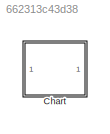
MODEL slx_662313c43d38
KIND model
CONFIG AbsTol = auto
CONFIG EnableMultiTasking = off
CONFIG FixedStep = auto
CONFIG MaxStep = auto
CONFIG MinStep = auto
CONFIG RelTol = 1e-3
CONFIG SampleTimeConstraint = Unconstrained
CONFIG Solver = VariableStepAuto
CONFIG SolverName = VariableStepAuto
CONFIG StartTime = 0.0
CONFIG StopTime = 10.0
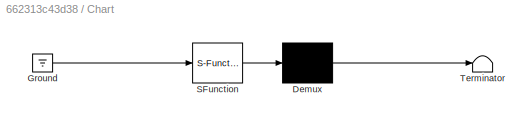
BLOCK [SubSystem] Chart
  ErrorFcn = Stateflow.Translate.translate
  PermitHierarchicalResolution = ExplicitOnly
  Ports = []
  RequestExecContextInheritance = off
  SFBlockType = Chart
  TreatAsAtomicUnit = on
BLOCK [Demux] Chart/ Demux 
  Outputs = 1
  Ports = [1, 1]
BLOCK [Ground] Chart/ Ground 
BLOCK [S-Function] Chart/ SFunction 
  EnableBusSupport = off
  FunctionName = sf_sfun
  PortCounts = [1 1]
  Ports = [1, 1]
  SFcnIsStateOwnerBlock = off
  SFunctionDeploymentMode = off
  Tag = Stateflow S-Function HistoryJunction1_2018a 3
BLOCK [Terminator] Chart/ Terminator 
CHART Chart states=6 transitions=8
  STATE_LABEL 'B\nen:fprintf("Entry B");\ndu:fprintf("During B");\nex:fprintf("Exit B");'
  STATE_LABEL 'B1\nen:fprintf("Entry B1");'
  STATE_LABEL 'B2\nen:fprintf("Entry B2");'
  STATE_LABEL 'B3\nen:fprintf("Entry B3");'
  STATE_LABEL 'B4\nen:fprintf("Entry B4");'
  STATE_LABEL '{x = x + 1;}'
  STATE_LABEL '{x = x + 1;}'
  STATE_LABEL '{x = x + 1;}'
  STATE_LABEL '{x = x + 1;}'
  STATE_LABEL 'H'
  STATE_LABEL 'B1\nen:fprintf("Entry B1");'
  STATE_LABEL 'B2\nen:fprintf("Entry B2");'
  STATE_LABEL 'B3\nen:fprintf("Entry B3");'
  STATE_LABEL 'B4\nen:fprintf("Entry B4");'
  STATE_LABEL 'A\nen:fprintf("Entry A");\ndu:fprintf("During A");\nex:fprintf("Exit A");'
